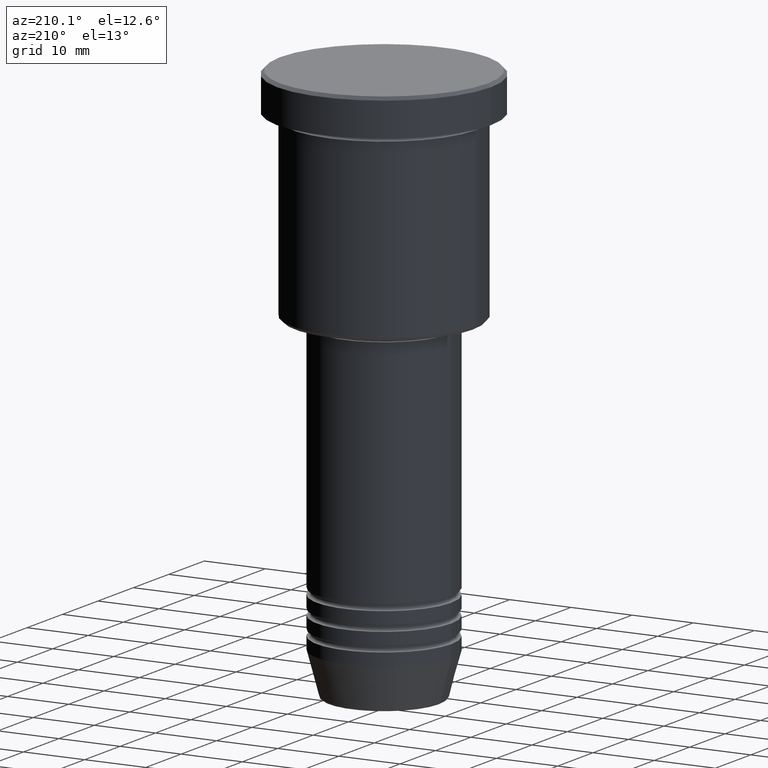
[diagram: clean part render]
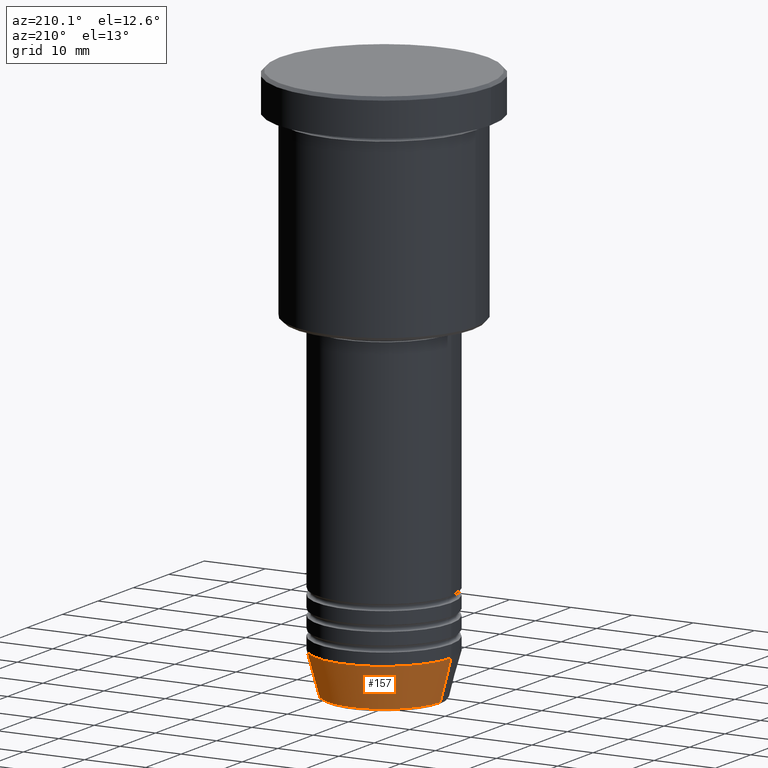
[diagram: same view with one face highlighted and labeled with its STEP entity id]
A machine part, auxiliary view. The second image highlights one B-rep face of the part: STEP entity #157.
In plain terms, the highlighted conical surface has half-angle 15 deg.
Its self-contained STEP definition (entity closure, byte-faithful):
#150 = EDGE_CURVE ( 'NONE', #782, #1054, #318, .T. ) ;
#157 = ADVANCED_FACE ( 'NONE', ( #530 ), #846, .T. ) ;
#160 = AXIS2_PLACEMENT_3D ( 'NONE', #426, #1082, #308 ) ;
#194 = DIRECTION ( 'NONE',  ( -0.2588190451025213501, 3.169619151431772337E-17, 0.9659258262890680902 ) ) ;
#196 = CARTESIAN_POINT ( 'NONE',  ( 9.223655072137187716, 0.000000000000000000, -90.62940952255124216 ) ) ;
#238 = ORIENTED_EDGE ( 'NONE', *, *, #958, .F. ) ;
#247 = VECTOR ( 'NONE', #748, 1000.000000000000000 ) ;
#308 = DIRECTION ( 'NONE',  ( 1.000000000000000000, 0.000000000000000000, 0.000000000000000000 ) ) ;
#318 = CIRCLE ( 'NONE', #654, 9.223655072137187716 ) ;
#330 = ORIENTED_EDGE ( 'NONE', *, *, #150, .T. ) ;
#331 = DIRECTION ( 'NONE',  ( 1.000000000000000000, 0.000000000000000000, 0.000000000000000000 ) ) ;
#333 = AXIS2_PLACEMENT_3D ( 'NONE', #818, #824, #993 ) ;
#365 = EDGE_CURVE ( 'NONE', #782, #920, #465, .T. ) ;
#426 = CARTESIAN_POINT ( 'NONE',  ( 0.000000000000000000, 0.000000000000000000, -83.99999999999998579 ) ) ;
#465 = LINE ( 'NONE', #839, #247 ) ;
#527 = CARTESIAN_POINT ( 'NONE',  ( -9.223655072137187716, 1.238341722557647004E-15, -90.62940952255124216 ) ) ;
#530 = FACE_OUTER_BOUND ( 'NONE', #979, .T. ) ;
#536 = CARTESIAN_POINT ( 'NONE',  ( -11.00000000000000000, 1.347111479062088405E-15, -83.99999999999998579 ) ) ;
#618 = VERTEX_POINT ( 'NONE', #997 ) ;
#654 = AXIS2_PLACEMENT_3D ( 'NONE', #1087, #1006, #331 ) ;
#700 = CIRCLE ( 'NONE', #160, 11.00000000000000000 ) ;
#748 = DIRECTION ( 'NONE',  ( 0.2588190451025213501, 0.000000000000000000, 0.9659258262890680902 ) ) ;
#749 = ORIENTED_EDGE ( 'NONE', *, *, #365, .F. ) ;
#758 = VECTOR ( 'NONE', #194, 1000.000000000000000 ) ;
#782 = VERTEX_POINT ( 'NONE', #196 ) ;
#803 = ORIENTED_EDGE ( 'NONE', *, *, #1084, .T. ) ;
#818 = CARTESIAN_POINT ( 'NONE',  ( 0.000000000000000000, 0.000000000000000000, -83.99999999999998579 ) ) ;
#824 = DIRECTION ( 'NONE',  ( -0.000000000000000000, -0.000000000000000000, 1.000000000000000000 ) ) ;
#839 = CARTESIAN_POINT ( 'NONE',  ( 11.00000000000000000, 0.000000000000000000, -83.99999999999998579 ) ) ;
#840 = LINE ( 'NONE', #536, #758 ) ;
#846 = CONICAL_SURFACE ( 'NONE', #333, 11.00000000000000000, 0.2617993877991500740 ) ;
#920 = VERTEX_POINT ( 'NONE', #1171 ) ;
#958 = EDGE_CURVE ( 'NONE', #920, #618, #700, .T. ) ;
#979 = EDGE_LOOP ( 'NONE', ( #330, #803, #238, #749 ) ) ;
#993 = DIRECTION ( 'NONE',  ( 1.000000000000000000, 0.000000000000000000, 0.000000000000000000 ) ) ;
#997 = CARTESIAN_POINT ( 'NONE',  ( -11.00000000000000000, 1.347111479062088405E-15, -83.99999999999998579 ) ) ;
#1006 = DIRECTION ( 'NONE',  ( -0.000000000000000000, -0.000000000000000000, 1.000000000000000000 ) ) ;
#1054 = VERTEX_POINT ( 'NONE', #527 ) ;
#1082 = DIRECTION ( 'NONE',  ( -0.000000000000000000, -0.000000000000000000, 1.000000000000000000 ) ) ;
#1084 = EDGE_CURVE ( 'NONE', #1054, #618, #840, .T. ) ;
#1087 = CARTESIAN_POINT ( 'NONE',  ( 0.000000000000000000, 0.000000000000000000, -90.62940952255124216 ) ) ;
#1171 = CARTESIAN_POINT ( 'NONE',  ( 11.00000000000000000, 0.000000000000000000, -83.99999999999998579 ) ) ;